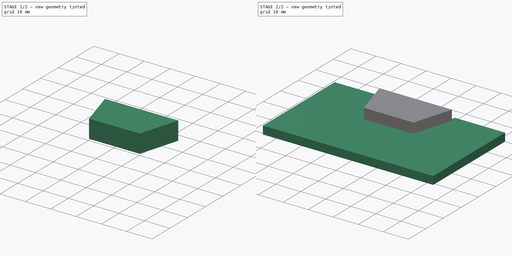
[diagram: build sequence overview — one tinted view per stage of 2, left to right]
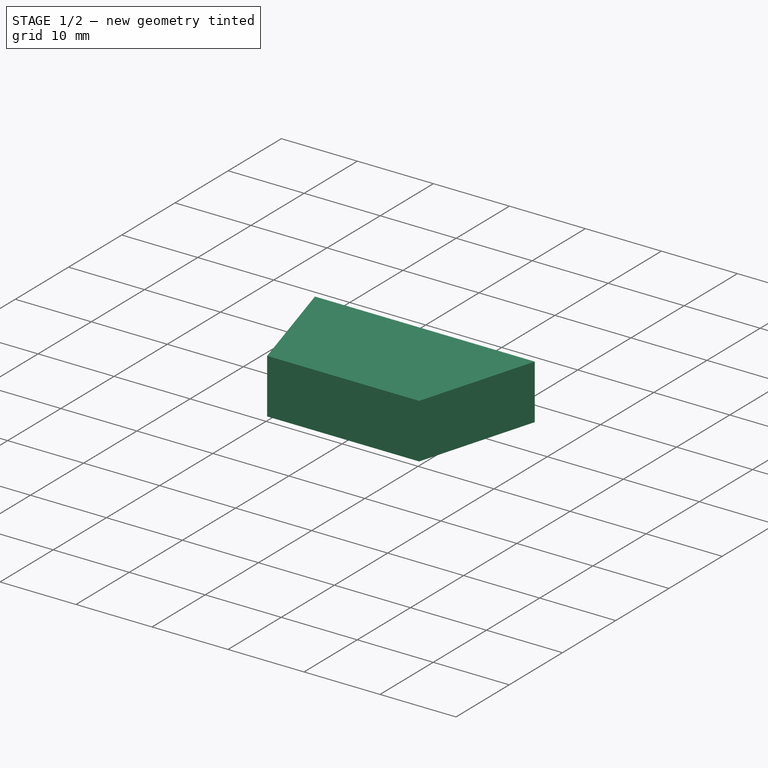
[diagram: stage 1 of 2 — iso view after this stage's code; geometry added in this stage tinted green]
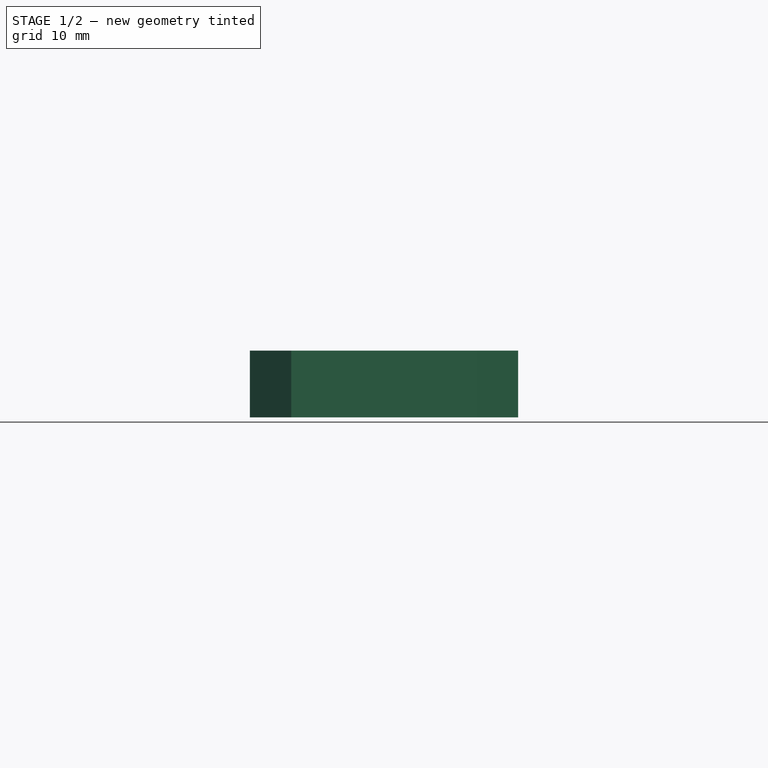
[diagram: stage 1 of 2 — front view after this stage's code; geometry added in this stage tinted green]
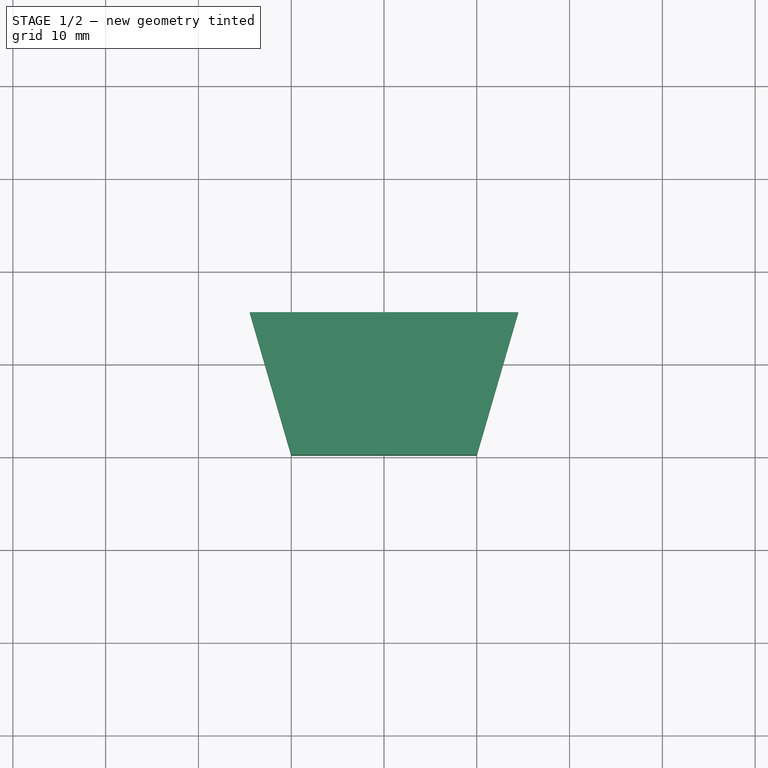
[diagram: stage 1 of 2 — top view after this stage's code; geometry added in this stage tinted green]
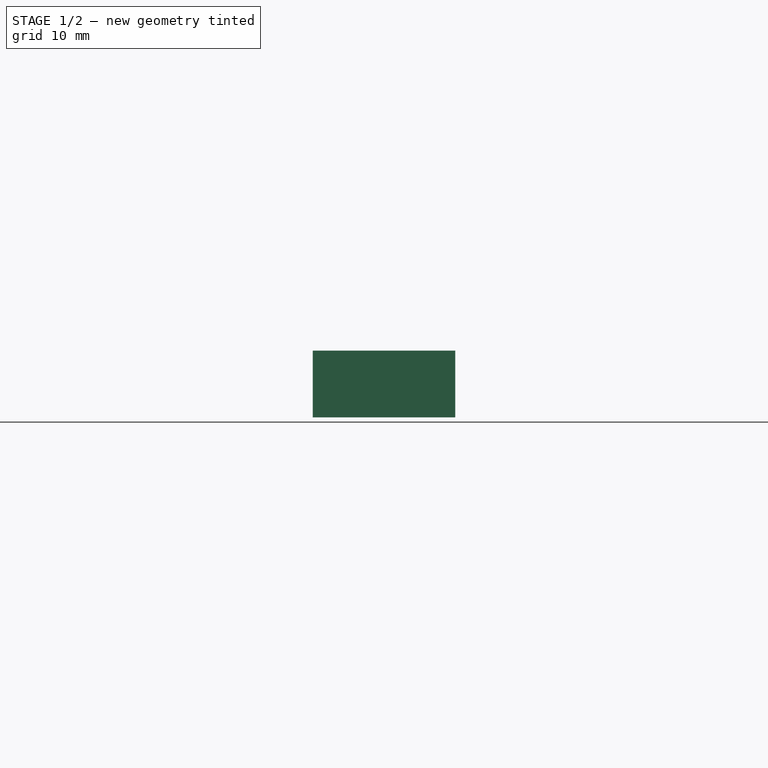
[diagram: stage 1 of 2 — right view after this stage's code; geometry added in this stage tinted green]
FCSTD DOCUMENT  (FreeCAD 0.18R4 (GitTag))
Label: smars_chassis_blank
License: All rights reserved
LicenseURL: http://en.wikipedia.org/wiki/All_rights_reserved
objects: Sketcher::SketchObject×2, PartDesign::Pad×2, PartDesign::Body×2
note: 8 computed .brp shape members not serialized (recipe doc carries the construction recipe); baked Part::Feature solids carry a one-line shape summary decoded from their .brp

FEATURE [PartDesign::Body] Body  label="body wall"
  Group = -> [Sketch,Pad]
  Origin = -> Origin
  Tip = -> Pad
FEATURE [PartDesign::Pad] Pad001
  Length = 7.2
  Length2 = 100
  Profile = -> Sketch001
  Type = 0
FEATURE [PartDesign::Body] Body001  label="body blank"
  Group = -> [Sketch001,Pad001]
  Origin = -> Origin001
  Placement = pos=(0,0,-2) rot=(0,0,1;0rad)
  Tip = -> Pad001
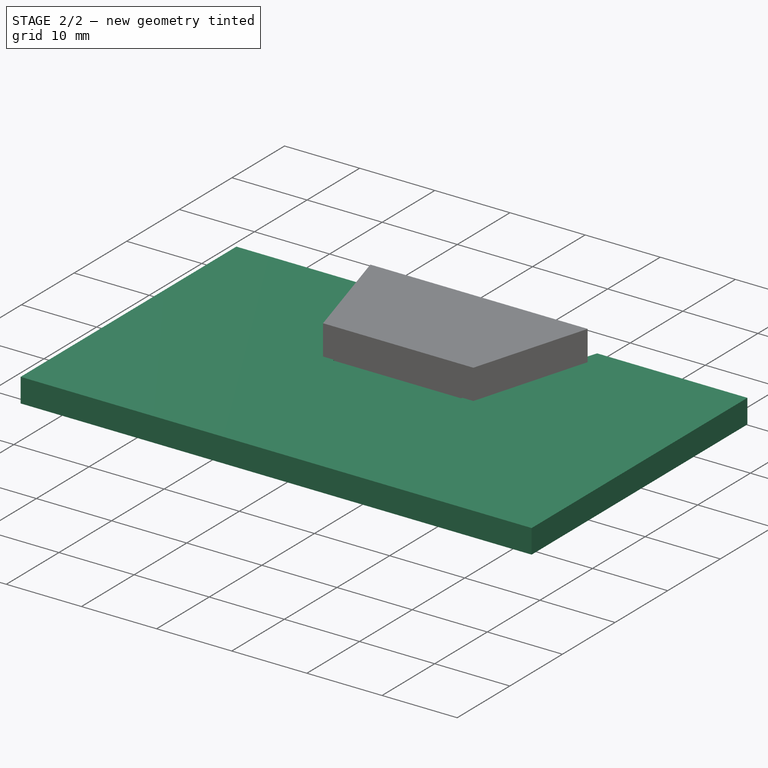
[diagram: stage 2 of 2 — iso view after this stage's code; geometry added in this stage tinted green]
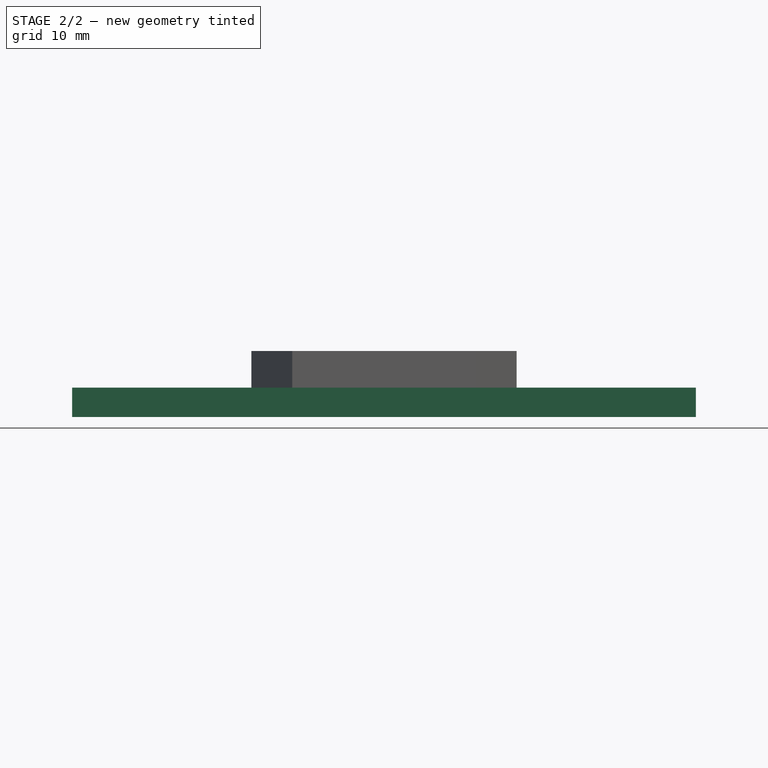
[diagram: stage 2 of 2 — front view after this stage's code; geometry added in this stage tinted green]
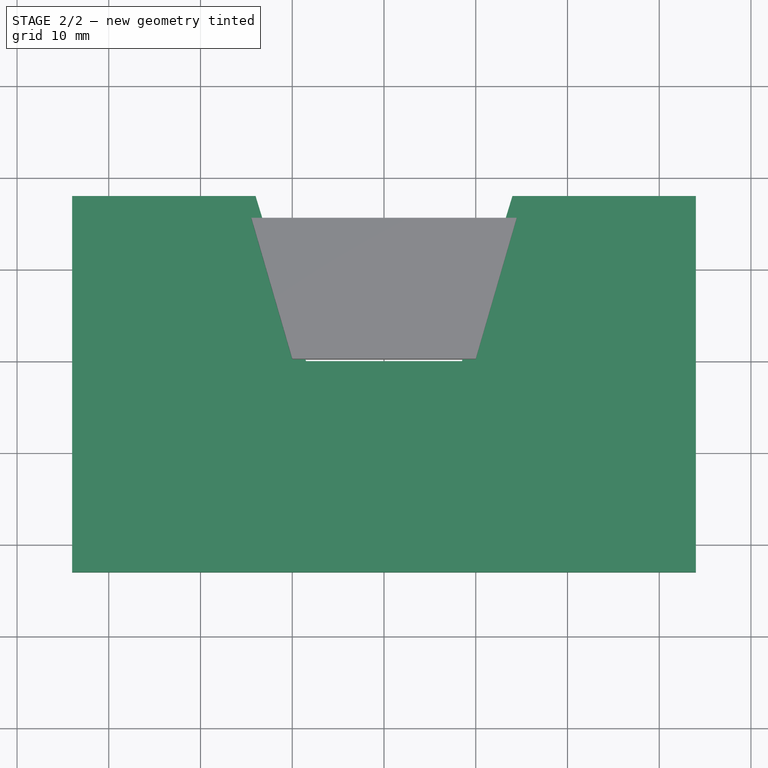
[diagram: stage 2 of 2 — top view after this stage's code; geometry added in this stage tinted green]
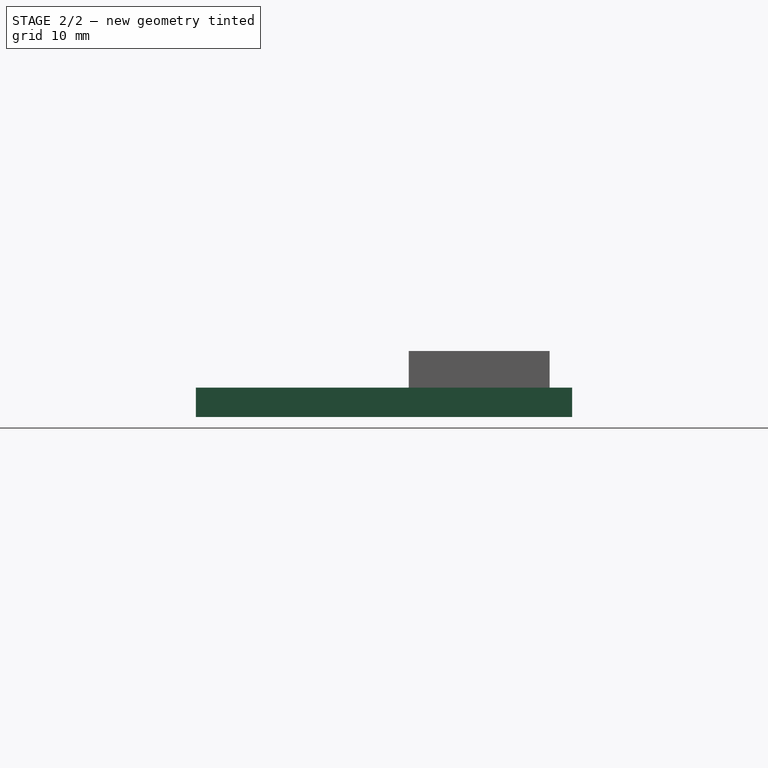
[diagram: stage 2 of 2 — right view after this stage's code; geometry added in this stage tinted green]
FEATURE [Sketcher::SketchObject] Sketch  label="wall"
  MapMode = 5
  Support = -> [XY_Plane]
  sketch-geometry (8):
    g0: LineSegment StartX=-34 StartY=18 StartZ=0 EndX=-14 EndY=18 EndZ=0
    g1: LineSegment StartX=-14 StartY=18 StartZ=0 EndX=-8.5 EndY=0 EndZ=0
    g2: LineSegment StartX=-8.5 StartY=0 StartZ=0 EndX=8.5 EndY=0 EndZ=0
    g3: LineSegment StartX=8.5 StartY=0 StartZ=0 EndX=14 EndY=18 EndZ=0
    g4: LineSegment StartX=14 StartY=18 StartZ=0 EndX=34 EndY=18 EndZ=0
    g5: LineSegment StartX=34 StartY=18 StartZ=0 EndX=34 EndY=-23 EndZ=0
    g6: LineSegment StartX=34 StartY=-23 StartZ=0 EndX=-34 EndY=-23 EndZ=0
    g7: LineSegment StartX=-34 StartY=-23 StartZ=0 EndX=-34 EndY=18 EndZ=0
  constraints (23):
    c: Coincident(g0,g1)
    c: Coincident(g1,g2)
    c: Coincident(g2,g3)
    c: Coincident(g3,g4)
    c: Coincident(g4,g5)
    c: Coincident(g5,g6)
    c: Coincident(g6,g7)
    c: Coincident(g7,g0)
    c: Vertical(g7)
    c: Vertical(g5)
    c: Equal(g7,g5)
    c: DistanceY(g5,g5) = 41
    c: Horizontal(g0)
    c: Horizontal(g4)
    c: Horizontal(g6)
    c: Equal(g0,g4)
    c: DistanceX(g4,g4) = 20
    c: DistanceX(g2,g2) = 17
    c: DistanceX(g1,g4) = 28
    c: Equal(g1,g3)
    c: PointOnObject(g1,g-1)
    c: Symmetric(g1,g2,g-2)
    c: Distance(g2,g6) = 23
FEATURE [Sketcher::SketchObject] Sketch001  label="blank"
  MapMode = 5
  Support = -> [XY_Plane001]
  sketch-geometry (5):
    g0: LineSegment [constr] StartX=-39.0566 StartY=15.7567 StartZ=0 EndX=40.08 EndY=15.7567 EndZ=0
    g1: LineSegment StartX=-14.4615 StartY=15.5567 StartZ=0 EndX=-10 EndY=0.2 EndZ=0
    g2: LineSegment StartX=-10 StartY=0.2 StartZ=0 EndX=10 EndY=0.2 EndZ=0
    g3: LineSegment StartX=10 StartY=0.2 StartZ=0 EndX=14.4615 EndY=15.5567 EndZ=0
    g4: LineSegment StartX=14.4615 StartY=15.5567 StartZ=0 EndX=-14.4615 EndY=15.5567 EndZ=0
  constraints (11):
    c: Horizontal(g0)
    c: Coincident(g1,g2)
    c: Coincident(g2,g3)
    c: Coincident(g3,g4)
    c: Coincident(g4,g1)
    c: Distance(g1,g0) = 0.2
    c: DistanceY(g-1,g1) = 0.2
    c: Symmetric(g1,g3,g-2)
    c: Symmetric(g1,g2,g-2)
    c: Angle(g2,g1) = 1.85354
    c: DistanceX(g2,g2) = 20
FEATURE [PartDesign::Pad] Pad
  Length = 3.2
  Length2 = 100
  Profile = -> Sketch
  Type = 0
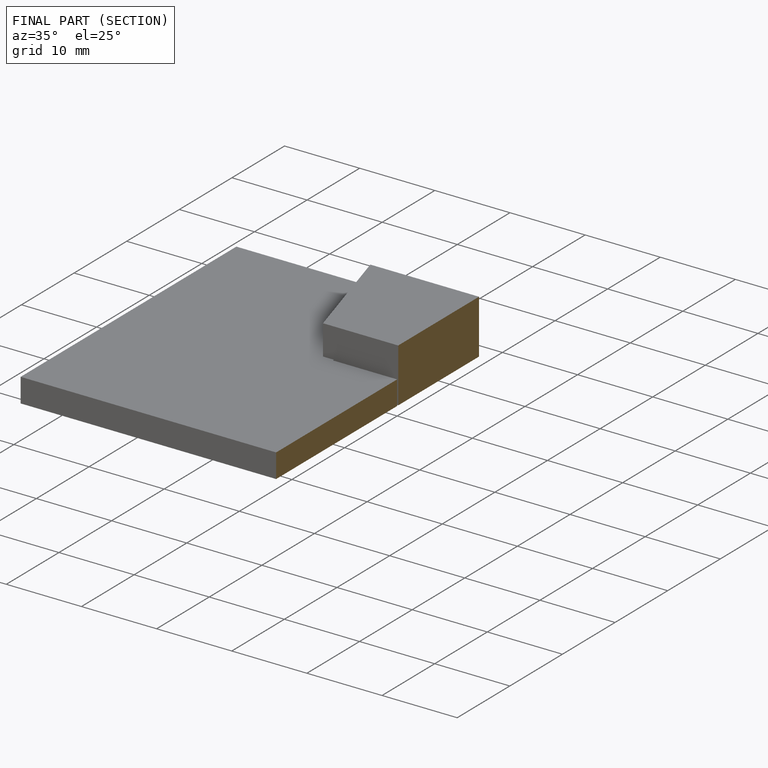
[diagram: finished part — half-section view (interior)]
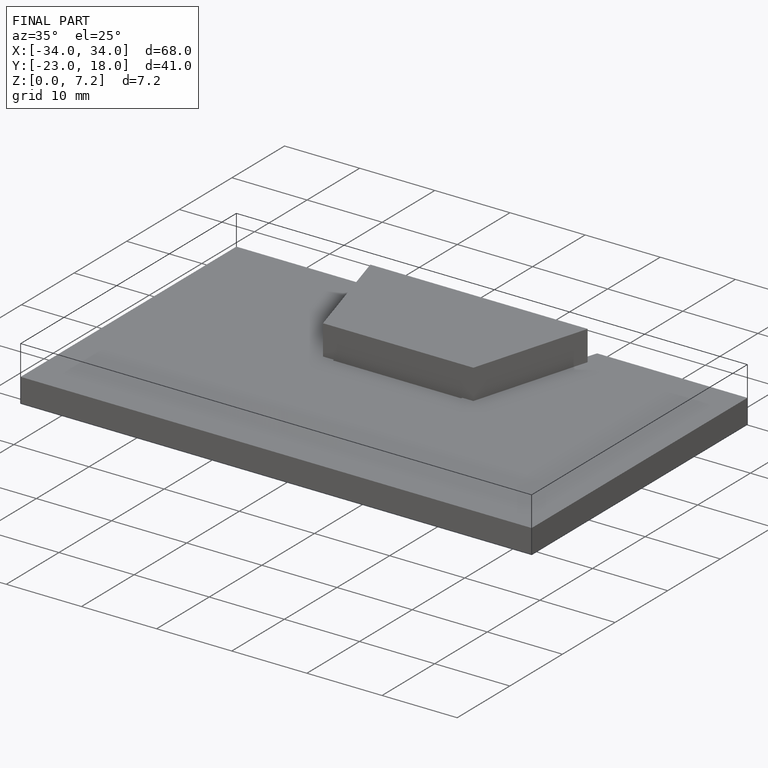
[diagram: finished part — iso view with bounding-box wireframe]
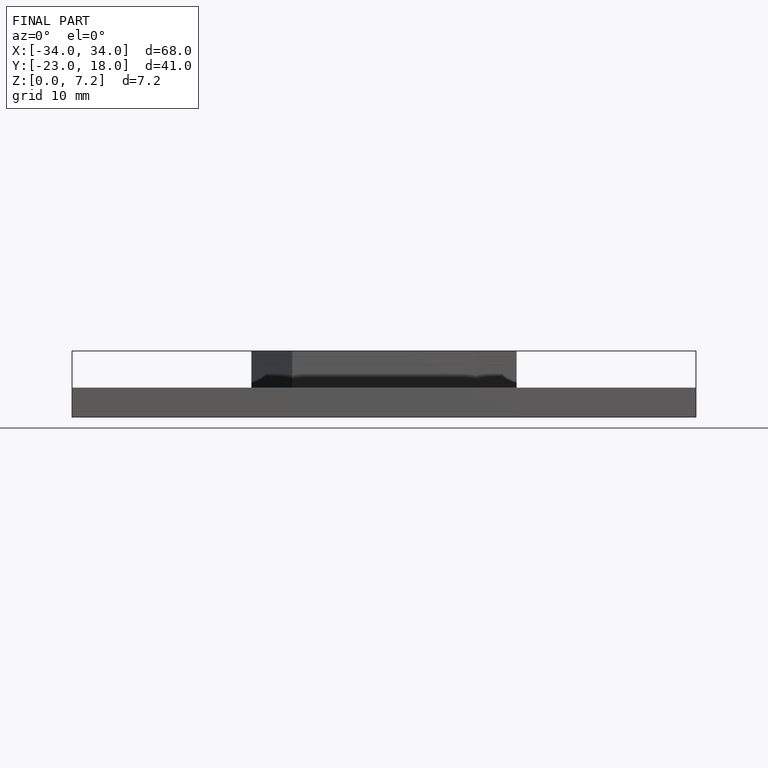
[diagram: finished part — front view with bounding-box wireframe]
